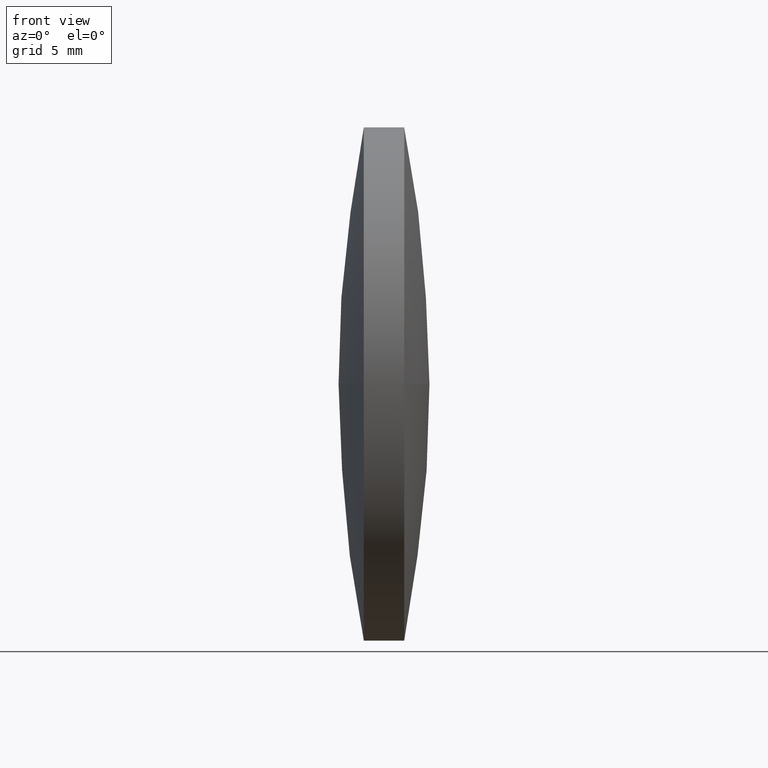
[diagram: clean part render]
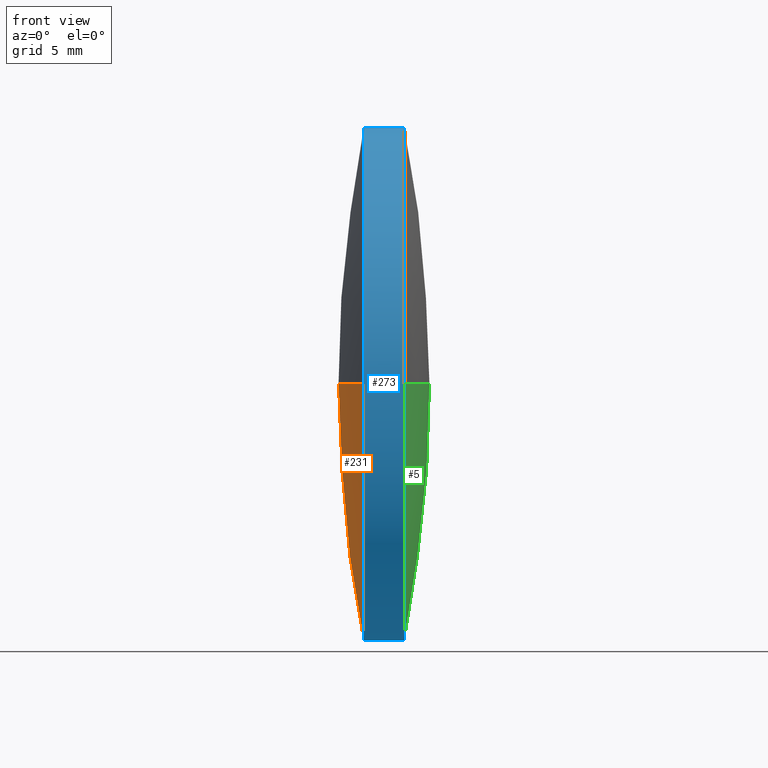
[diagram: same view with three faces highlighted in distinct colors, each labeled with its STEP entity id]
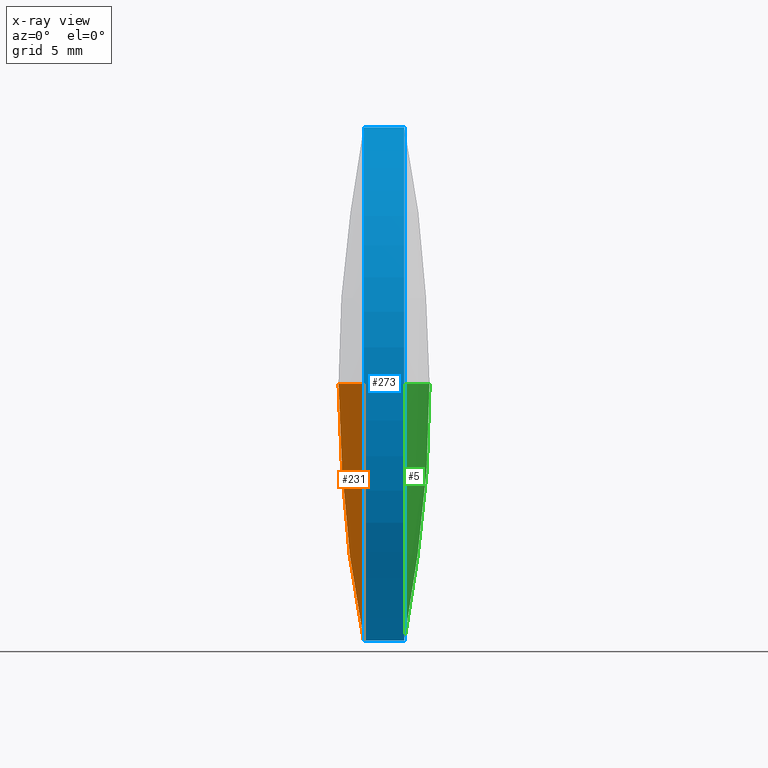
[diagram: x-ray of the same camera — body ghosted, the three highlighted faces saturated]
A machine part, front view with three faces highlighted in distinct colors.
The next image is the same camera in x-ray (body ghosted, the three faces saturated) — at least one of them is partly hidden behind the body in this view.
Their STEP definitions:

[orange] entity #231 — the highlighted spherical surface has radius 65.1388 mm.
#4 = DIRECTION ( 'NONE',  ( -0.0000000000000000000, 0.0000000000000000000, -1.000000000000000000 ) ) ;
#17 = CIRCLE ( 'NONE', #291, 12.69999999999999600 ) ;
#31 = AXIS2_PLACEMENT_3D ( 'NONE', #313, #345, #315 ) ;
#37 = AXIS2_PLACEMENT_3D ( 'NONE', #251, #91, #194 ) ;
#41 = ORIENTED_EDGE ( 'NONE', *, *, #195, .T. ) ;
#62 = DIRECTION ( 'NONE',  ( -0.0000000000000000000, 0.0000000000000000000, 1.000000000000000000 ) ) ;
#63 = DIRECTION ( 'NONE',  ( 0.0000000000000000000, 0.0000000000000000000, 1.000000000000000000 ) ) ;
#69 = CIRCLE ( 'NONE', #37, 65.13880952726569300 ) ;
#71 = EDGE_CURVE ( 'NONE', #199, #307, #17, .T. ) ;
#73 = ORIENTED_EDGE ( 'NONE', *, *, #112, .T. ) ;
#76 = CARTESIAN_POINT ( 'NONE',  ( 85.45852234609111500, 35.91611302318478500, -1.555301434917133100E-015 ) ) ;
#78 = EDGE_CURVE ( 'NONE', #255, #156, #137, .T. ) ;
#91 = DIRECTION ( 'NONE',  ( 0.0000000000000000000, 1.224646799147353200E-016, -1.000000000000000000 ) ) ;
#109 = ORIENTED_EDGE ( 'NONE', *, *, #71, .T. ) ;
#112 = EDGE_CURVE ( 'NONE', #307, #156, #69, .T. ) ;
#119 = FACE_OUTER_BOUND ( 'NONE', #232, .T. ) ;
#123 = CARTESIAN_POINT ( 'NONE',  ( 85.45852234609111500, 61.31611302318474100, 0.0000000000000000000 ) ) ;
#137 = CIRCLE ( 'NONE', #331, 65.13880952726569300 ) ;
#146 = CIRCLE ( 'NONE', #31, 12.69999999999999600 ) ;
#156 = VERTEX_POINT ( 'NONE', #253 ) ;
#168 = CARTESIAN_POINT ( 'NONE',  ( 149.3472890162139800, 48.61611302318474500, 0.0000000000000000000 ) ) ;
#190 = CARTESIAN_POINT ( 'NONE',  ( 85.45852234609111500, 48.61611302318478100, 0.0000000000000000000 ) ) ;
#194 = DIRECTION ( 'NONE',  ( 0.0000000000000000000, 1.000000000000000000, 1.224646799147353200E-016 ) ) ;
#195 = EDGE_CURVE ( 'NONE', #255, #199, #146, .T. ) ;
#199 = VERTEX_POINT ( 'NONE', #282 ) ;
#208 = SPHERICAL_SURFACE ( 'NONE', #236, 65.13880952726569300 ) ;
#212 = DIRECTION ( 'NONE',  ( -1.000000000000000000, -0.0000000000000000000, -0.0000000000000000000 ) ) ;
#231 = ADVANCED_FACE ( 'NONE', ( #119 ), #208, .T. ) ;
#232 = EDGE_LOOP ( 'NONE', ( #41, #109, #73, #317 ) ) ;
#236 = AXIS2_PLACEMENT_3D ( 'NONE', #280, #4, #320 ) ;
#251 = CARTESIAN_POINT ( 'NONE',  ( 149.3472890162139800, 48.61611302318474500, 0.0000000000000000000 ) ) ;
#253 = CARTESIAN_POINT ( 'NONE',  ( 84.20847948894827100, 48.61611302318475200, 0.0000000000000000000 ) ) ;
#255 = VERTEX_POINT ( 'NONE', #123 ) ;
#267 = DIRECTION ( 'NONE',  ( 1.000000000000000000, 0.0000000000000000000, 0.0000000000000000000 ) ) ;
#280 = CARTESIAN_POINT ( 'NONE',  ( 149.3472890162139800, 48.61611302318474500, 0.0000000000000000000 ) ) ;
#282 = CARTESIAN_POINT ( 'NONE',  ( 85.45852234609111500, 48.61611302318478100, -12.69999999999999600 ) ) ;
#291 = AXIS2_PLACEMENT_3D ( 'NONE', #190, #212, #63 ) ;
#307 = VERTEX_POINT ( 'NONE', #76 ) ;
#313 = CARTESIAN_POINT ( 'NONE',  ( 85.45852234609111500, 48.61611302318478100, 0.0000000000000000000 ) ) ;
#315 = DIRECTION ( 'NONE',  ( 0.0000000000000000000, 0.0000000000000000000, 1.000000000000000000 ) ) ;
#317 = ORIENTED_EDGE ( 'NONE', *, *, #78, .F. ) ;
#320 = DIRECTION ( 'NONE',  ( 0.0000000000000000000, 1.000000000000000000, 0.0000000000000000000 ) ) ;
#331 = AXIS2_PLACEMENT_3D ( 'NONE', #168, #62, #267 ) ;
#345 = DIRECTION ( 'NONE',  ( -1.000000000000000000, -0.0000000000000000000, -0.0000000000000000000 ) ) ;

[blue] entity #273 — the highlighted cylindrical surface (partial cylindrical patch) has radius 12.7 mm, axis along (-1, -0, -0).
#3 = ORIENTED_EDGE ( 'NONE', *, *, #71, .F. ) ;
#13 = FACE_OUTER_BOUND ( 'NONE', #43, .T. ) ;
#14 = DIRECTION ( 'NONE',  ( 0.0000000000000000000, 0.0000000000000000000, 1.000000000000000000 ) ) ;
#17 = CIRCLE ( 'NONE', #291, 12.69999999999999600 ) ;
#23 = LINE ( 'NONE', #215, #144 ) ;
#25 = VERTEX_POINT ( 'NONE', #262 ) ;
#32 = EDGE_CURVE ( 'NONE', #237, #265, #344, .T. ) ;
#39 = CARTESIAN_POINT ( 'NONE',  ( 87.45786520323396500, 48.61611302318478100, 0.0000000000000000000 ) ) ;
#43 = EDGE_LOOP ( 'NONE', ( #170, #151, #328, #143, #87, #3 ) ) ;
#50 = EDGE_CURVE ( 'NONE', #307, #25, #260, .T. ) ;
#53 = DIRECTION ( 'NONE',  ( -1.000000000000000000, -0.0000000000000000000, -0.0000000000000000000 ) ) ;
#63 = DIRECTION ( 'NONE',  ( 0.0000000000000000000, 0.0000000000000000000, 1.000000000000000000 ) ) ;
#67 = EDGE_CURVE ( 'NONE', #227, #199, #23, .T. ) ;
#71 = EDGE_CURVE ( 'NONE', #199, #307, #17, .T. ) ;
#74 = LINE ( 'NONE', #245, #284 ) ;
#76 = CARTESIAN_POINT ( 'NONE',  ( 85.45852234609111500, 35.91611302318478500, -1.555301434917133100E-015 ) ) ;
#84 = CIRCLE ( 'NONE', #149, 12.69999999999999600 ) ;
#87 = ORIENTED_EDGE ( 'NONE', *, *, #50, .F. ) ;
#97 = DIRECTION ( 'NONE',  ( -1.000000000000000000, -0.0000000000000000000, -0.0000000000000000000 ) ) ;
#114 = DIRECTION ( 'NONE',  ( -1.000000000000000000, -0.0000000000000000000, -0.0000000000000000000 ) ) ;
#118 = CARTESIAN_POINT ( 'NONE',  ( 87.45786520323397900, 35.91611302318481300, 0.0000000000000000000 ) ) ;
#131 = EDGE_CURVE ( 'NONE', #265, #25, #74, .T. ) ;
#138 = CARTESIAN_POINT ( 'NONE',  ( 87.45786520323396500, 48.61611302318478100, 0.0000000000000000000 ) ) ;
#143 = ORIENTED_EDGE ( 'NONE', *, *, #131, .T. ) ;
#144 = VECTOR ( 'NONE', #300, 1000.000000000000000 ) ;
#149 = AXIS2_PLACEMENT_3D ( 'NONE', #39, #53, #239 ) ;
#150 = CARTESIAN_POINT ( 'NONE',  ( 79.30540135083715800, 48.61611302318478100, 0.0000000000000000000 ) ) ;
#151 = ORIENTED_EDGE ( 'NONE', *, *, #338, .T. ) ;
#154 = AXIS2_PLACEMENT_3D ( 'NONE', #150, #97, #286 ) ;
#157 = CYLINDRICAL_SURFACE ( 'NONE', #154, 12.69999999999999600 ) ;
#165 = DIRECTION ( 'NONE',  ( -1.000000000000000000, -0.0000000000000000000, -0.0000000000000000000 ) ) ;
#170 = ORIENTED_EDGE ( 'NONE', *, *, #67, .F. ) ;
#190 = CARTESIAN_POINT ( 'NONE',  ( 85.45852234609111500, 48.61611302318478100, 0.0000000000000000000 ) ) ;
#199 = VERTEX_POINT ( 'NONE', #282 ) ;
#210 = DIRECTION ( 'NONE',  ( 0.0000000000000000000, 0.0000000000000000000, 1.000000000000000000 ) ) ;
#212 = DIRECTION ( 'NONE',  ( -1.000000000000000000, -0.0000000000000000000, -0.0000000000000000000 ) ) ;
#215 = CARTESIAN_POINT ( 'NONE',  ( 79.30540135083715800, 48.61611302318478100, -12.69999999999999600 ) ) ;
#225 = CARTESIAN_POINT ( 'NONE',  ( 87.45786520323396500, 48.61611302318478100, -12.69999999999999600 ) ) ;
#227 = VERTEX_POINT ( 'NONE', #225 ) ;
#233 = CARTESIAN_POINT ( 'NONE',  ( 87.45786520323396500, 48.61611302318478100, 12.69999999999999600 ) ) ;
#237 = VERTEX_POINT ( 'NONE', #118 ) ;
#239 = DIRECTION ( 'NONE',  ( 0.0000000000000000000, 0.0000000000000000000, 1.000000000000000000 ) ) ;
#245 = CARTESIAN_POINT ( 'NONE',  ( 79.30540135083715800, 48.61611302318478100, 12.69999999999999600 ) ) ;
#254 = AXIS2_PLACEMENT_3D ( 'NONE', #138, #165, #210 ) ;
#260 = CIRCLE ( 'NONE', #269, 12.69999999999999600 ) ;
#262 = CARTESIAN_POINT ( 'NONE',  ( 85.45852234609111500, 48.61611302318478100, 12.69999999999999600 ) ) ;
#265 = VERTEX_POINT ( 'NONE', #233 ) ;
#269 = AXIS2_PLACEMENT_3D ( 'NONE', #334, #337, #14 ) ;
#273 = ADVANCED_FACE ( 'NONE', ( #13 ), #157, .T. ) ;
#282 = CARTESIAN_POINT ( 'NONE',  ( 85.45852234609111500, 48.61611302318478100, -12.69999999999999600 ) ) ;
#284 = VECTOR ( 'NONE', #114, 1000.000000000000000 ) ;
#286 = DIRECTION ( 'NONE',  ( 0.0000000000000000000, 0.0000000000000000000, 1.000000000000000000 ) ) ;
#291 = AXIS2_PLACEMENT_3D ( 'NONE', #190, #212, #63 ) ;
#300 = DIRECTION ( 'NONE',  ( -1.000000000000000000, -0.0000000000000000000, -0.0000000000000000000 ) ) ;
#307 = VERTEX_POINT ( 'NONE', #76 ) ;
#328 = ORIENTED_EDGE ( 'NONE', *, *, #32, .T. ) ;
#334 = CARTESIAN_POINT ( 'NONE',  ( 85.45852234609111500, 48.61611302318478100, 0.0000000000000000000 ) ) ;
#337 = DIRECTION ( 'NONE',  ( -1.000000000000000000, -0.0000000000000000000, -0.0000000000000000000 ) ) ;
#338 = EDGE_CURVE ( 'NONE', #227, #237, #84, .T. ) ;
#344 = CIRCLE ( 'NONE', #254, 12.69999999999999600 ) ;

[green] entity #5 — the highlighted spherical surface has radius 65.1388 mm.
#1 = DIRECTION ( 'NONE',  ( -1.000000000000000000, 0.0000000000000000000, 0.0000000000000000000 ) ) ;
#2 = CARTESIAN_POINT ( 'NONE',  ( 23.56909853311203000, 48.61611302318482300, 0.0000000000000000000 ) ) ;
#5 = ADVANCED_FACE ( 'NONE', ( #35 ), #213, .T. ) ;
#18 = DIRECTION ( 'NONE',  ( 0.0000000000000000000, -1.000000000000000000, -1.224646799147353200E-016 ) ) ;
#24 = AXIS2_PLACEMENT_3D ( 'NONE', #2, #322, #1 ) ;
#28 = CARTESIAN_POINT ( 'NONE',  ( 88.70790806037683800, 48.61611302318481600, 0.0000000000000000000 ) ) ;
#35 = FACE_OUTER_BOUND ( 'NONE', #339, .T. ) ;
#39 = CARTESIAN_POINT ( 'NONE',  ( 87.45786520323396500, 48.61611302318478100, 0.0000000000000000000 ) ) ;
#47 = CIRCLE ( 'NONE', #166, 12.69999999999999600 ) ;
#53 = DIRECTION ( 'NONE',  ( -1.000000000000000000, -0.0000000000000000000, -0.0000000000000000000 ) ) ;
#55 = AXIS2_PLACEMENT_3D ( 'NONE', #136, #83, #18 ) ;
#68 = DIRECTION ( 'NONE',  ( 0.0000000000000000000, 0.0000000000000000000, 1.000000000000000000 ) ) ;
#70 = DIRECTION ( 'NONE',  ( -1.000000000000000000, -0.0000000000000000000, -0.0000000000000000000 ) ) ;
#83 = DIRECTION ( 'NONE',  ( 0.0000000000000000000, -1.224646799147353200E-016, 1.000000000000000000 ) ) ;
#84 = CIRCLE ( 'NONE', #149, 12.69999999999999600 ) ;
#89 = CIRCLE ( 'NONE', #24, 65.13880952726481200 ) ;
#92 = ORIENTED_EDGE ( 'NONE', *, *, #226, .T. ) ;
#93 = EDGE_CURVE ( 'NONE', #295, #160, #196, .T. ) ;
#105 = DIRECTION ( 'NONE',  ( 0.0000000000000000000, 0.0000000000000000000, 1.000000000000000000 ) ) ;
#118 = CARTESIAN_POINT ( 'NONE',  ( 87.45786520323397900, 35.91611302318481300, 0.0000000000000000000 ) ) ;
#133 = ORIENTED_EDGE ( 'NONE', *, *, #93, .F. ) ;
#136 = CARTESIAN_POINT ( 'NONE',  ( 23.56909853311203000, 48.61611302318482300, 0.0000000000000000000 ) ) ;
#149 = AXIS2_PLACEMENT_3D ( 'NONE', #39, #53, #239 ) ;
#152 = EDGE_CURVE ( 'NONE', #160, #227, #47, .T. ) ;
#160 = VERTEX_POINT ( 'NONE', #279 ) ;
#164 = ORIENTED_EDGE ( 'NONE', *, *, #152, .F. ) ;
#166 = AXIS2_PLACEMENT_3D ( 'NONE', #223, #70, #68 ) ;
#196 = CIRCLE ( 'NONE', #55, 65.13880952726481200 ) ;
#205 = DIRECTION ( 'NONE',  ( 0.0000000000000000000, -1.000000000000000000, 0.0000000000000000000 ) ) ;
#213 = SPHERICAL_SURFACE ( 'NONE', #235, 65.13880952726481200 ) ;
#223 = CARTESIAN_POINT ( 'NONE',  ( 87.45786520323396500, 48.61611302318478100, 0.0000000000000000000 ) ) ;
#225 = CARTESIAN_POINT ( 'NONE',  ( 87.45786520323396500, 48.61611302318478100, -12.69999999999999600 ) ) ;
#226 = EDGE_CURVE ( 'NONE', #295, #237, #89, .T. ) ;
#227 = VERTEX_POINT ( 'NONE', #225 ) ;
#235 = AXIS2_PLACEMENT_3D ( 'NONE', #293, #105, #205 ) ;
#237 = VERTEX_POINT ( 'NONE', #118 ) ;
#239 = DIRECTION ( 'NONE',  ( 0.0000000000000000000, 0.0000000000000000000, 1.000000000000000000 ) ) ;
#240 = ORIENTED_EDGE ( 'NONE', *, *, #338, .F. ) ;
#279 = CARTESIAN_POINT ( 'NONE',  ( 87.45786520323397900, 61.31611302318479100, 1.555301434917135300E-015 ) ) ;
#293 = CARTESIAN_POINT ( 'NONE',  ( 23.56909853311203000, 48.61611302318482300, 0.0000000000000000000 ) ) ;
#295 = VERTEX_POINT ( 'NONE', #28 ) ;
#322 = DIRECTION ( 'NONE',  ( 0.0000000000000000000, 0.0000000000000000000, -1.000000000000000000 ) ) ;
#338 = EDGE_CURVE ( 'NONE', #227, #237, #84, .T. ) ;
#339 = EDGE_LOOP ( 'NONE', ( #133, #92, #240, #164 ) ) ;